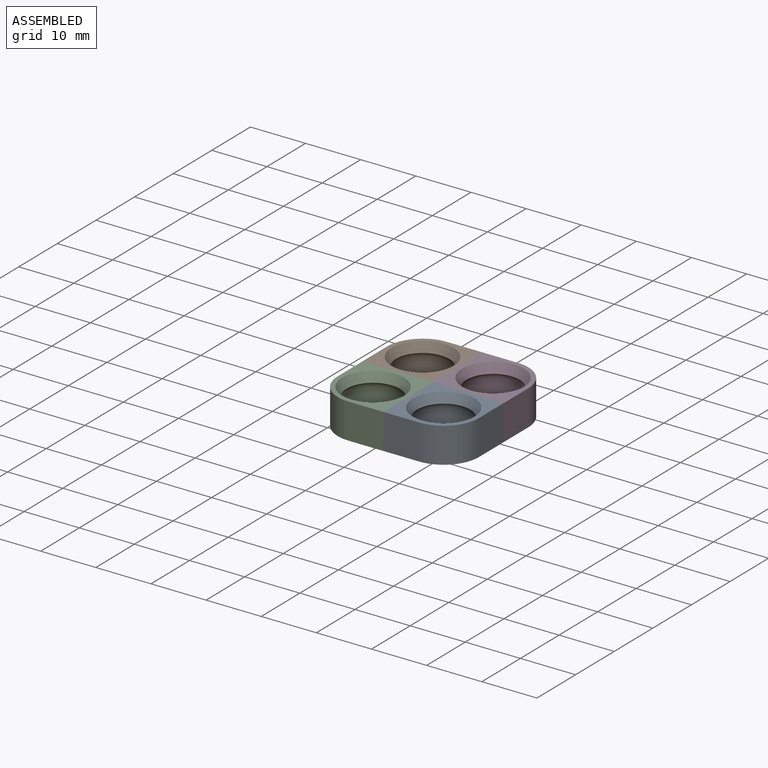
[diagram: assembled view]
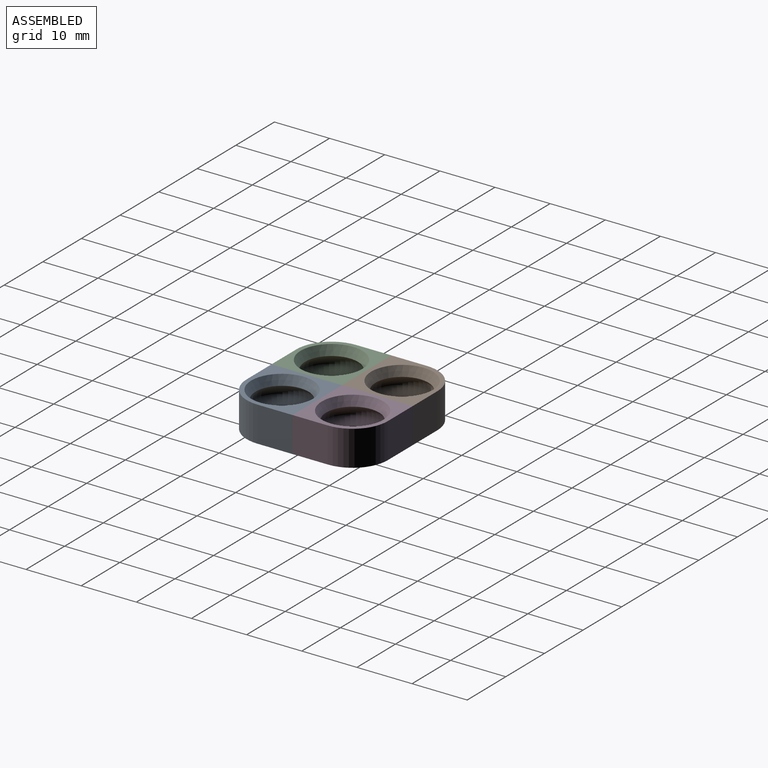
[diagram: assembled view, second angle]
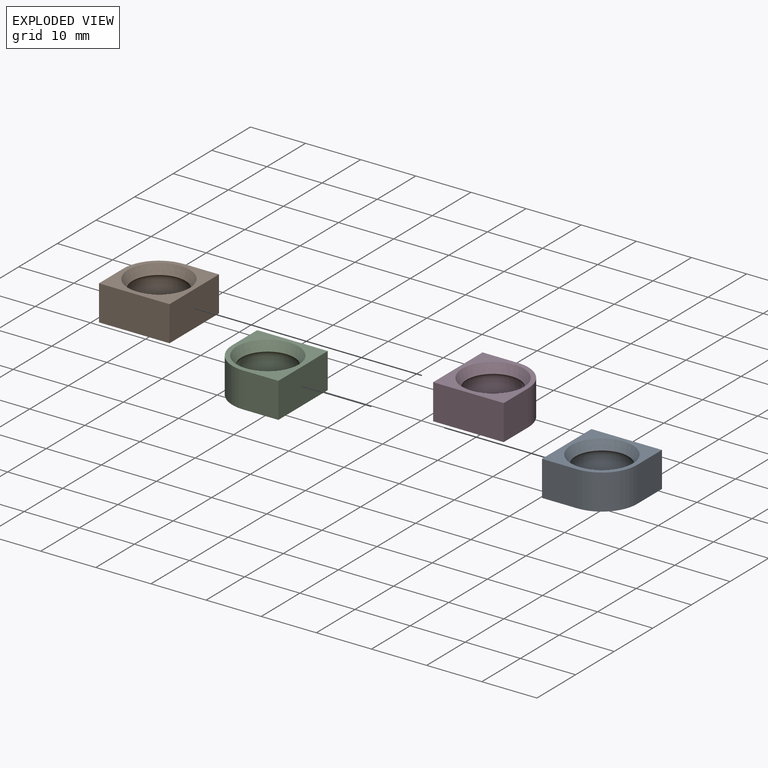
[diagram: exploded view]
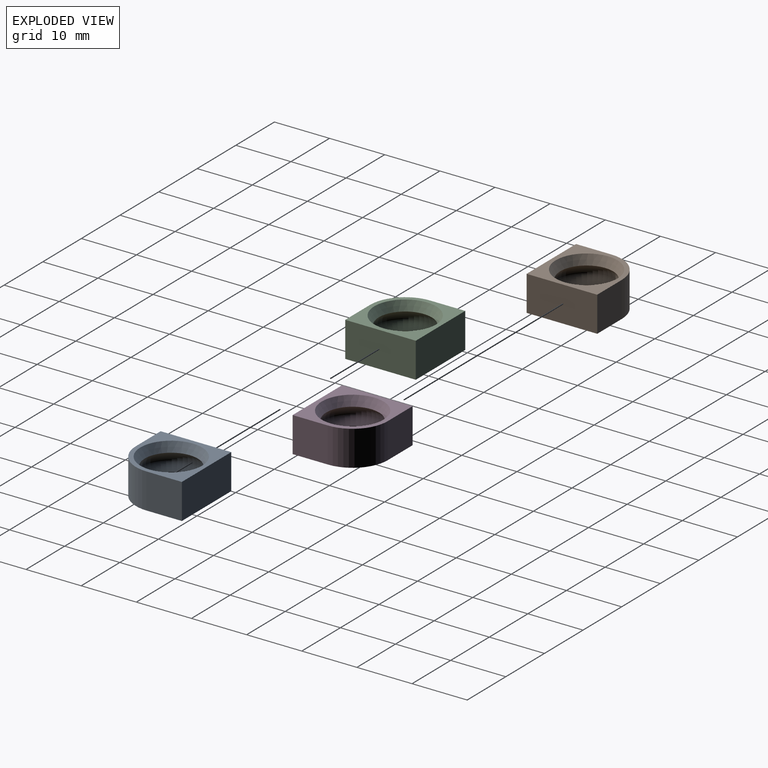
[diagram: exploded view, second angle]
ASSEMBLY  parts=4 mates=3
PART A: 10 faces, bbox 12.8x12.8x6.4 mm
  f0: cylinder r=6.4mm len=6.4mm, axis (0,0,-1), area 64.3mm2, adj f1,f5,f7,f8
  f1: plane 12.8x12.8mm, normal (0,0,-1), area 56.5mm2, adj f0,f2,f6,f7,f8,f9
  f2: cone r=5.6mm half-angle=26.6deg, axis (0,0,-1), area 58.4mm2, adj f1,f3
  f3: torus R=3.6mm, axis (0,0,-1), area 124.1mm2, adj f2,f4
  f4: cone r=5.6mm half-angle=26.6deg, axis (0,0,1), area 58.4mm2, adj f3,f5
  f5: plane 12.8x12.8mm, normal (0,0,1), area 56.5mm2, adj f0,f4,f6,f7,f8,f9
  f6: plane 12.8x6.4mm, normal (1,0,0), area 81.9mm2, adj f1,f5,f7,f9
  f7: plane 6.4x6.4mm, normal (0,1,0), area 41mm2, adj f0,f1,f5,f6
  f8: plane 6.4x6.4mm, normal (-1,0,0), area 41mm2, adj f0,f1,f5,f9
  f9: plane 12.8x6.4mm, normal (0,-1,0), area 81.9mm2, adj f1,f5,f6,f8
PART B: same geometry as A
PART C: same geometry as A
PART D: same geometry as A
PLACE A rot(axis=(0,0,-1),180deg) t=(8.65,51.47,-5.48)mm
PLACE B t=(-4.15,-31.73,-5.48)mm
PLACE C rot(axis=(0,0,1),90deg) t=(43.85,3.47,-5.48)mm
PLACE D rot(axis=(0,0,-1),90deg) t=(-39.35,16.27,-5.48)mm
MATE fastened D.f6 <-> A.f9  axis (0,-1,0) through (8.65,9.87,-2.28)mm
MATE fastened C.f9 <-> A.f6  axis (1,0,0) through (2.25,3.47,-2.28)mm
MATE fastened B.f6 <-> D.f9  axis (1,0,0) through (2.25,16.27,-2.28)mm
